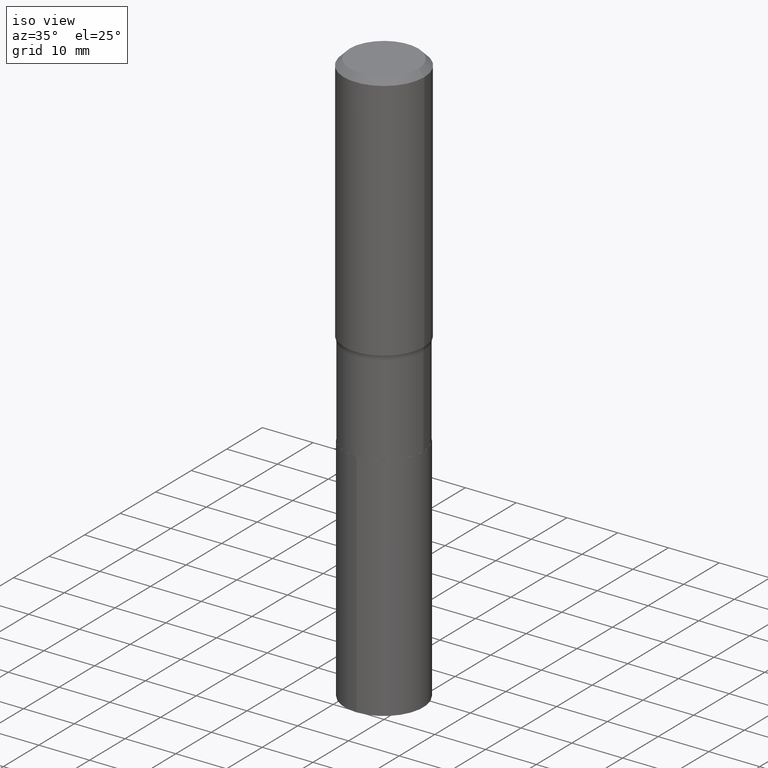
[diagram: clean part render]
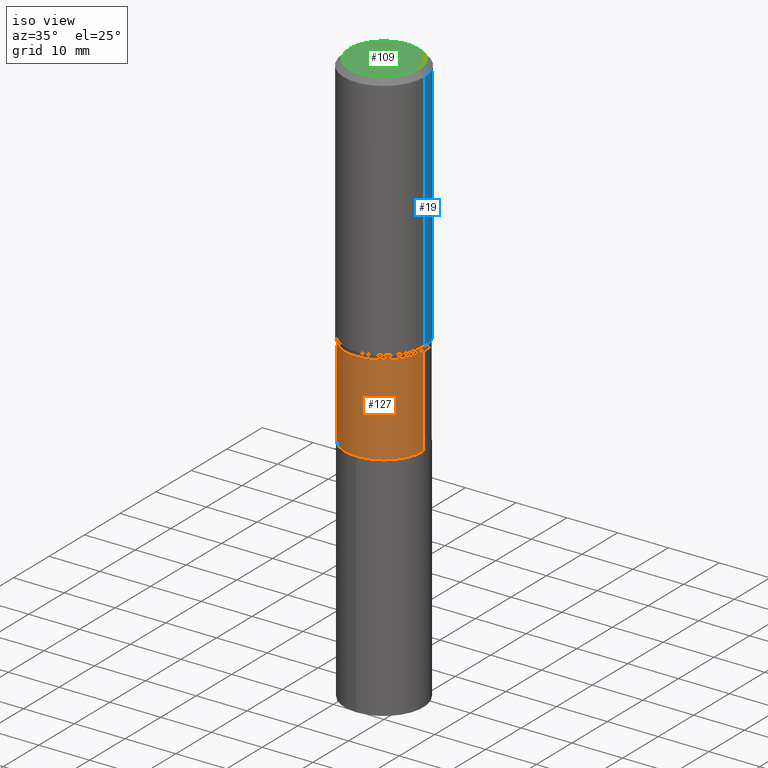
[diagram: same view with three faces highlighted in distinct colors, each labeled with its STEP entity id]
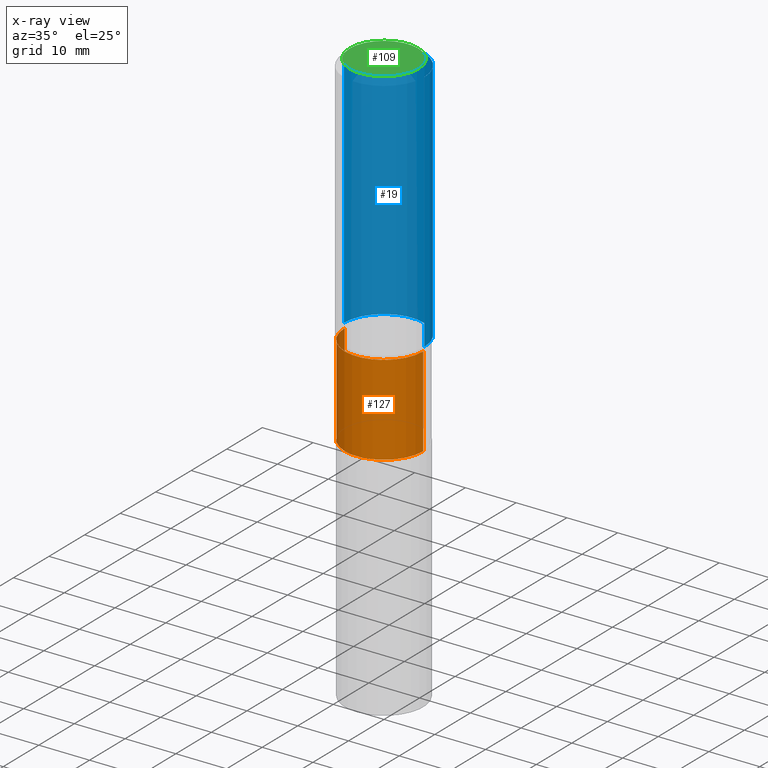
[diagram: x-ray of the same camera — body ghosted, the three highlighted faces saturated]
A machine part, iso view with three faces highlighted in distinct colors.
The next image is the same camera in x-ray (body ghosted, the three faces saturated) — at least one of them is partly hidden behind the body in this view.
Their STEP definitions:

[orange] entity #127 — the highlighted cylindrical surface (partial cylindrical patch) has radius 7.7394 mm, axis along (-0, 0, 1).
#1 = CARTESIAN_POINT ( 'NONE',  ( 0.3046999999999999709, -2.127708727891005464E-15, 1.485771063585021539E-29 ) ) ;
#15 = EDGE_CURVE ( 'NONE', #136, #174, #484, .T. ) ;
#40 = LINE ( 'NONE', #1, #271 ) ;
#73 = AXIS2_PLACEMENT_3D ( 'NONE', #284, #113, #148 ) ;
#79 = CIRCLE ( 'NONE', #247, 0.3047000000000000264 ) ;
#84 = DIRECTION ( 'NONE',  ( 1.000000000000000000, -6.982962677686265133E-15, 0.000000000000000000 ) ) ;
#100 = EDGE_LOOP ( 'NONE', ( #322, #447, #132, #394 ) ) ;
#113 = DIRECTION ( 'NONE',  ( -2.445468806185136597E-29, 3.491481338843145583E-15, 1.000000000000000000 ) ) ;
#127 = ADVANCED_FACE ( 'NONE', ( #353 ), #385, .T. ) ;
#132 = ORIENTED_EDGE ( 'NONE', *, *, #309, .T. ) ;
#136 = VERTEX_POINT ( 'NONE', #305 ) ;
#148 = DIRECTION ( 'NONE',  ( 1.000000000000000000, -6.982962677686267499E-15, 4.876176775795935793E-29 ) ) ;
#174 = VERTEX_POINT ( 'NONE', #317 ) ;
#176 = AXIS2_PLACEMENT_3D ( 'NONE', #452, #415, #225 ) ;
#212 = CARTESIAN_POINT ( 'NONE',  ( -0.3047000000000000819, -5.939577341928623564E-15, -2.671399999999999331 ) ) ;
#225 = DIRECTION ( 'NONE',  ( 1.000000000000000000, -6.982962677686263555E-15, 0.000000000000000000 ) ) ;
#228 = LINE ( 'NONE', #346, #256 ) ;
#247 = AXIS2_PLACEMENT_3D ( 'NONE', #276, #425, #84 ) ;
#256 = VECTOR ( 'NONE', #380, 39.37007874015748143 ) ;
#271 = VECTOR ( 'NONE', #459, 39.37007874015748143 ) ;
#276 = CARTESIAN_POINT ( 'NONE',  ( 6.532825368842971777E-29, -9.327143248585576876E-15, -2.671399999999999331 ) ) ;
#284 = CARTESIAN_POINT ( 'NONE',  ( 0.000000000000000000, 0.000000000000000000, 0.000000000000000000 ) ) ;
#285 = EDGE_CURVE ( 'NONE', #370, #136, #228, .T. ) ;
#286 = VERTEX_POINT ( 'NONE', #392 ) ;
#305 = CARTESIAN_POINT ( 'NONE',  ( -0.3046999999999999709, -5.939577341928625142E-15, -1.971099999999999630 ) ) ;
#309 = EDGE_CURVE ( 'NONE', #286, #174, #40, .T. ) ;
#317 = CARTESIAN_POINT ( 'NONE',  ( 0.3046999999999999709, -9.009767594884727806E-15, -1.971099999999999630 ) ) ;
#322 = ORIENTED_EDGE ( 'NONE', *, *, #285, .F. ) ;
#346 = CARTESIAN_POINT ( 'NONE',  ( -0.3046999999999999709, 2.165023715861025059E-15, -1.498799522000669851E-29 ) ) ;
#353 = FACE_OUTER_BOUND ( 'NONE', #100, .T. ) ;
#364 = EDGE_CURVE ( 'NONE', #370, #286, #79, .T. ) ;
#370 = VERTEX_POINT ( 'NONE', #212 ) ;
#380 = DIRECTION ( 'NONE',  ( -2.445468806185136877E-29, 3.491481338843145188E-15, 1.000000000000000000 ) ) ;
#385 = CYLINDRICAL_SURFACE ( 'NONE', #73, 0.3046999999999999709 ) ;
#392 = CARTESIAN_POINT ( 'NONE',  ( 0.3047000000000000264, -1.145485197647658116E-14, -2.671399999999999331 ) ) ;
#394 = ORIENTED_EDGE ( 'NONE', *, *, #15, .F. ) ;
#415 = DIRECTION ( 'NONE',  ( -2.445468806185136597E-29, 3.491481338843145583E-15, 1.000000000000000000 ) ) ;
#425 = DIRECTION ( 'NONE',  ( -2.445468806185136597E-29, 3.491481338843145583E-15, 1.000000000000000000 ) ) ;
#447 = ORIENTED_EDGE ( 'NONE', *, *, #364, .T. ) ;
#452 = CARTESIAN_POINT ( 'NONE',  ( 4.820263563871521824E-29, -6.882058866993723526E-15, -1.971099999999999630 ) ) ;
#459 = DIRECTION ( 'NONE',  ( -2.445468806185136877E-29, 3.491481338843145188E-15, 1.000000000000000000 ) ) ;
#484 = CIRCLE ( 'NONE', #176, 0.3046999999999999709 ) ;

[blue] entity #19 — the highlighted cylindrical surface (partial cylindrical patch) has radius 7.9375 mm, axis along (-0, 0, 1).
#19 = ADVANCED_FACE ( 'NONE', ( #217 ), #368, .T. ) ;
#41 = CARTESIAN_POINT ( 'NONE',  ( 1.146313502899288910E-30, -1.636631877582733305E-16, -0.04687500000000024980 ) ) ;
#46 = CIRCLE ( 'NONE', #280, 0.3125000000000001665 ) ;
#58 = ORIENTED_EDGE ( 'NONE', *, *, #337, .F. ) ;
#59 = ORIENTED_EDGE ( 'NONE', *, *, #456, .T. ) ;
#98 = DIRECTION ( 'NONE',  ( -2.445468806185136877E-29, 3.491481338843145188E-15, 1.000000000000000000 ) ) ;
#102 = DIRECTION ( 'NONE',  ( 1.000000000000000000, -6.982962677686266711E-15, 4.876176775795936353E-29 ) ) ;
#120 = DIRECTION ( 'NONE',  ( -2.445468806185136597E-29, 3.491481338843145583E-15, 1.000000000000000000 ) ) ;
#141 = VERTEX_POINT ( 'NONE', #227 ) ;
#146 = VERTEX_POINT ( 'NONE', #281 ) ;
#181 = VERTEX_POINT ( 'NONE', #422 ) ;
#191 = LINE ( 'NONE', #349, #348 ) ;
#203 = CARTESIAN_POINT ( 'NONE',  ( -0.3125000000000000000, -1.243060822280509884E-15, -0.04687500000000024980 ) ) ;
#209 = VECTOR ( 'NONE', #98, 39.37007874015748143 ) ;
#217 = FACE_OUTER_BOUND ( 'NONE', #354, .T. ) ;
#227 = CARTESIAN_POINT ( 'NONE',  ( 0.3125000000000001665, -8.945526392080334964E-15, -1.937100588240382004 ) ) ;
#248 = ORIENTED_EDGE ( 'NONE', *, *, #490, .F. ) ;
#249 = DIRECTION ( 'NONE',  ( -2.445468806185136597E-29, 3.491481338843145583E-15, 1.000000000000000000 ) ) ;
#280 = AXIS2_PLACEMENT_3D ( 'NONE', #438, #249, #395 ) ;
#281 = CARTESIAN_POINT ( 'NONE',  ( 0.3125000000000000000, -2.345839024535231998E-15, -0.04687500000000024980 ) ) ;
#290 = LINE ( 'NONE', #433, #209 ) ;
#295 = CARTESIAN_POINT ( 'NONE',  ( 0.000000000000000000, 0.000000000000000000, 0.000000000000000000 ) ) ;
#320 = CIRCLE ( 'NONE', #458, 0.3125000000000000000 ) ;
#325 = EDGE_CURVE ( 'NONE', #181, #475, #191, .T. ) ;
#337 = EDGE_CURVE ( 'NONE', #146, #475, #320, .T. ) ;
#344 = DIRECTION ( 'NONE',  ( 1.000000000000000000, -6.982962677686268288E-15, 0.000000000000000000 ) ) ;
#345 = DIRECTION ( 'NONE',  ( -2.445468806185136877E-29, 3.491481338843145188E-15, 1.000000000000000000 ) ) ;
#348 = VECTOR ( 'NONE', #345, 39.37007874015748143 ) ;
#349 = CARTESIAN_POINT ( 'NONE',  ( -0.3125000000000000555, 2.220446049250313475E-15, -1.537167215704658512E-29 ) ) ;
#354 = EDGE_LOOP ( 'NONE', ( #59, #375, #58, #248 ) ) ;
#368 = CYLINDRICAL_SURFACE ( 'NONE', #420, 0.3125000000000000555 ) ;
#375 = ORIENTED_EDGE ( 'NONE', *, *, #325, .T. ) ;
#395 = DIRECTION ( 'NONE',  ( 1.000000000000000000, -6.982962677686268288E-15, 0.000000000000000000 ) ) ;
#420 = AXIS2_PLACEMENT_3D ( 'NONE', #295, #445, #102 ) ;
#422 = CARTESIAN_POINT ( 'NONE',  ( -0.3125000000000001665, -4.542904506053060381E-15, -1.937100588240382004 ) ) ;
#433 = CARTESIAN_POINT ( 'NONE',  ( 0.3125000000000000555, -2.182175836776958741E-15, 1.523805242436230356E-29 ) ) ;
#438 = CARTESIAN_POINT ( 'NONE',  ( 4.737119062984733269E-29, -6.763350555303374250E-15, -1.937100588240382004 ) ) ;
#445 = DIRECTION ( 'NONE',  ( -2.445468806185136597E-29, 3.491481338843145583E-15, 1.000000000000000000 ) ) ;
#456 = EDGE_CURVE ( 'NONE', #141, #181, #46, .T. ) ;
#458 = AXIS2_PLACEMENT_3D ( 'NONE', #41, #120, #344 ) ;
#475 = VERTEX_POINT ( 'NONE', #203 ) ;
#490 = EDGE_CURVE ( 'NONE', #141, #146, #290, .T. ) ;

[green] entity #109 — the highlighted planar face has unit normal (0, -0, -1).
#4 = DIRECTION ( 'NONE',  ( 2.438088387897960049E-29, -3.491481338843145188E-15, -1.000000000000000000 ) ) ;
#23 = DIRECTION ( 'NONE',  ( 1.000000000000000000, -6.982962677686268288E-15, 4.875573276536765329E-29 ) ) ;
#56 = AXIS2_PLACEMENT_3D ( 'NONE', #489, #4, #128 ) ;
#69 = ORIENTED_EDGE ( 'NONE', *, *, #481, .T. ) ;
#74 = ORIENTED_EDGE ( 'NONE', *, *, #173, .T. ) ;
#109 = ADVANCED_FACE ( 'NONE', ( #232 ), #321, .F. ) ;
#115 = CARTESIAN_POINT ( 'NONE',  ( -0.2656250000000000000, 1.936681055139549843E-15, 1.951780836139768664E-17 ) ) ;
#128 = DIRECTION ( 'NONE',  ( -1.000000000000000000, 6.982962677686265922E-15, -4.876176775795935793E-29 ) ) ;
#130 = DIRECTION ( 'NONE',  ( -2.445468806185136597E-29, 3.491481338843145583E-15, 1.000000000000000000 ) ) ;
#142 = AXIS2_PLACEMENT_3D ( 'NONE', #327, #323, #23 ) ;
#173 = EDGE_CURVE ( 'NONE', #213, #264, #182, .T. ) ;
#182 = CIRCLE ( 'NONE', #334, 0.2656250000000000000 ) ;
#213 = VERTEX_POINT ( 'NONE', #115 ) ;
#232 = FACE_OUTER_BOUND ( 'NONE', #299, .T. ) ;
#264 = VERTEX_POINT ( 'NONE', #418 ) ;
#279 = DIRECTION ( 'NONE',  ( 1.000000000000000000, -6.982962677686268288E-15, 4.875573276536765329E-29 ) ) ;
#299 = EDGE_LOOP ( 'NONE', ( #74, #69 ) ) ;
#312 = CIRCLE ( 'NONE', #142, 0.2656250000000000000 ) ;
#321 = PLANE ( 'NONE',  #56 ) ;
#323 = DIRECTION ( 'NONE',  ( -2.445468806185136597E-29, 3.491481338843145583E-15, 1.000000000000000000 ) ) ;
#327 = CARTESIAN_POINT ( 'NONE',  ( -4.773019151292989710E-46, 6.814606366898303014E-32, 1.951780836141094628E-17 ) ) ;
#334 = AXIS2_PLACEMENT_3D ( 'NONE', #359, #130, #279 ) ;
#359 = CARTESIAN_POINT ( 'NONE',  ( -4.773019151292989710E-46, 6.814606366898303014E-32, 1.951780836141094628E-17 ) ) ;
#418 = CARTESIAN_POINT ( 'NONE',  ( 0.2656250000000000000, -2.064944296359970168E-15, 1.951780836142464966E-17 ) ) ;
#481 = EDGE_CURVE ( 'NONE', #264, #213, #312, .T. ) ;
#489 = CARTESIAN_POINT ( 'NONE',  ( -2.386509575646494855E-46, 3.407303183449151507E-32, 9.758904180705473142E-18 ) ) ;